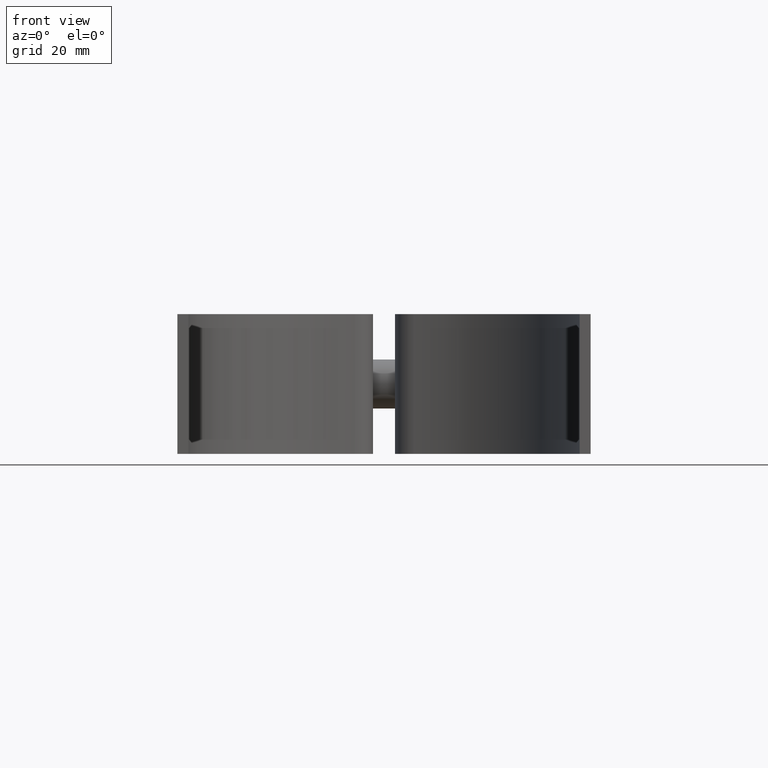
[diagram: clean part render]
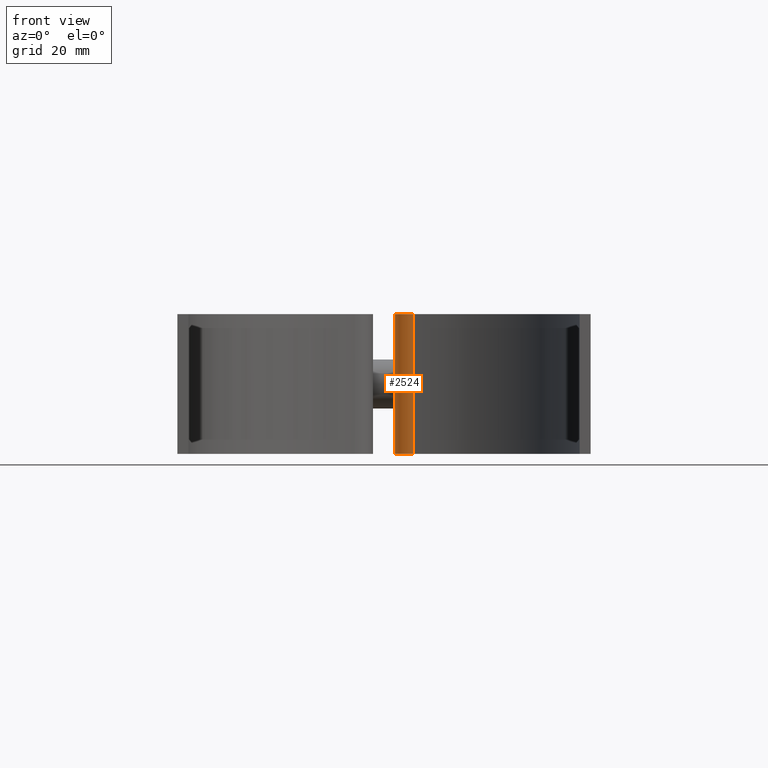
[diagram: same view with one face highlighted and labeled with its STEP entity id]
A machine part, front view. The second image highlights one B-rep face of the part: STEP entity #2524.
In plain terms, the highlighted cylindrical surface (edge-blend (fillet) strip) has radius 5 mm, axis along (-0, -0, -1).
Its self-contained STEP definition (entity closure, byte-faithful):
#198 = EDGE_LOOP ( 'NONE', ( #1911, #1283, #1482, #330 ) ) ;
#200 = DIRECTION ( 'NONE',  ( -1.000000000000000000, 0.000000000000000000, 0.000000000000000000 ) ) ;
#228 = EDGE_CURVE ( 'NONE', #2146, #1312, #674, .T. ) ;
#294 = VERTEX_POINT ( 'NONE', #1036 ) ;
#330 = ORIENTED_EDGE ( 'NONE', *, *, #1899, .F. ) ;
#434 = AXIS2_PLACEMENT_3D ( 'NONE', #1647, #1361, #1706 ) ;
#674 = CIRCLE ( 'NONE', #1214, 5.000000000000000000 ) ;
#1036 = CARTESIAN_POINT ( 'NONE',  ( 2.499999999999996891, 43.31533469450196350, -15.87500000000000000 ) ) ;
#1049 = EDGE_CURVE ( 'NONE', #1367, #294, #1460, .T. ) ;
#1214 = AXIS2_PLACEMENT_3D ( 'NONE', #2990, #2952, #1495 ) ;
#1240 = CARTESIAN_POINT ( 'NONE',  ( 2.499999999999996891, 43.31533469450196350, 15.87500000000000000 ) ) ;
#1283 = ORIENTED_EDGE ( 'NONE', *, *, #3753, .F. ) ;
#1312 = VERTEX_POINT ( 'NONE', #3274 ) ;
#1360 = CARTESIAN_POINT ( 'NONE',  ( 7.499999999999997335, 43.31533469450196350, 15.87500000000000000 ) ) ;
#1361 = DIRECTION ( 'NONE',  ( -0.000000000000000000, -0.000000000000000000, -1.000000000000000000 ) ) ;
#1367 = VERTEX_POINT ( 'NONE', #3081 ) ;
#1460 = CIRCLE ( 'NONE', #434, 5.000000000000000000 ) ;
#1482 = ORIENTED_EDGE ( 'NONE', *, *, #1049, .F. ) ;
#1495 = DIRECTION ( 'NONE',  ( 1.000000000000000000, 0.000000000000000000, 0.000000000000000000 ) ) ;
#1647 = CARTESIAN_POINT ( 'NONE',  ( 7.499999999999997335, 43.31533469450196350, -15.87500000000000000 ) ) ;
#1664 = CYLINDRICAL_SURFACE ( 'NONE', #1932, 5.000000000000000000 ) ;
#1706 = DIRECTION ( 'NONE',  ( 1.000000000000000000, 0.000000000000000000, 0.000000000000000000 ) ) ;
#1744 = LINE ( 'NONE', #2922, #3040 ) ;
#1899 = EDGE_CURVE ( 'NONE', #1312, #1367, #1744, .T. ) ;
#1911 = ORIENTED_EDGE ( 'NONE', *, *, #228, .F. ) ;
#1930 = CARTESIAN_POINT ( 'NONE',  ( 2.499999999999996891, 43.31533469450196350, 15.87500000000000000 ) ) ;
#1932 = AXIS2_PLACEMENT_3D ( 'NONE', #1360, #1984, #200 ) ;
#1984 = DIRECTION ( 'NONE',  ( -0.000000000000000000, -0.000000000000000000, -1.000000000000000000 ) ) ;
#2146 = VERTEX_POINT ( 'NONE', #1930 ) ;
#2407 = LINE ( 'NONE', #1240, #2919 ) ;
#2524 = ADVANCED_FACE ( 'NONE', ( #3015 ), #1664, .T. ) ;
#2630 = DIRECTION ( 'NONE',  ( -0.000000000000000000, -0.000000000000000000, -1.000000000000000000 ) ) ;
#2919 = VECTOR ( 'NONE', #3588, 1000.000000000000000 ) ;
#2922 = CARTESIAN_POINT ( 'NONE',  ( 6.741658240647117495, 38.37317749586678417, 15.87500000000000000 ) ) ;
#2952 = DIRECTION ( 'NONE',  ( 0.000000000000000000, 0.000000000000000000, 1.000000000000000000 ) ) ;
#2990 = CARTESIAN_POINT ( 'NONE',  ( 7.499999999999997335, 43.31533469450196350, 15.87500000000000000 ) ) ;
#3015 = FACE_OUTER_BOUND ( 'NONE', #198, .T. ) ;
#3040 = VECTOR ( 'NONE', #2630, 1000.000000000000000 ) ;
#3081 = CARTESIAN_POINT ( 'NONE',  ( 6.741658240647117495, 38.37317749586678417, -15.87500000000000000 ) ) ;
#3274 = CARTESIAN_POINT ( 'NONE',  ( 6.741658240647117495, 38.37317749586678417, 15.87500000000000000 ) ) ;
#3588 = DIRECTION ( 'NONE',  ( -0.000000000000000000, -0.000000000000000000, 1.000000000000000000 ) ) ;
#3753 = EDGE_CURVE ( 'NONE', #294, #2146, #2407, .T. ) ;